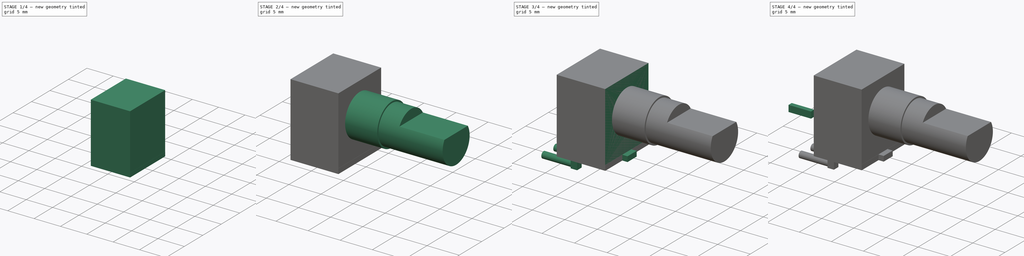
[diagram: build sequence overview — one tinted view per stage of 4, left to right]
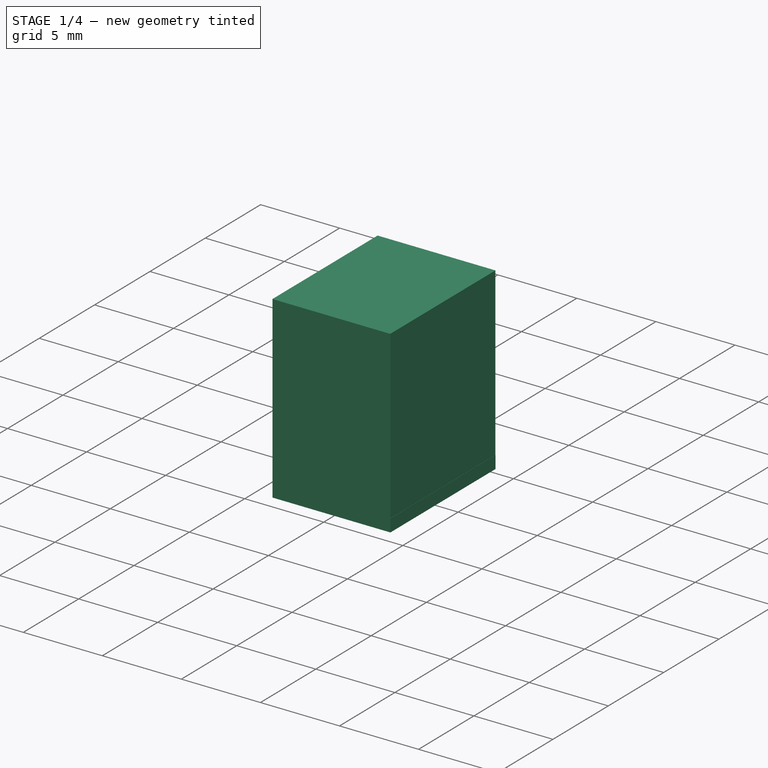
[diagram: stage 1 of 4 — iso view after this stage's code; geometry added in this stage tinted green]
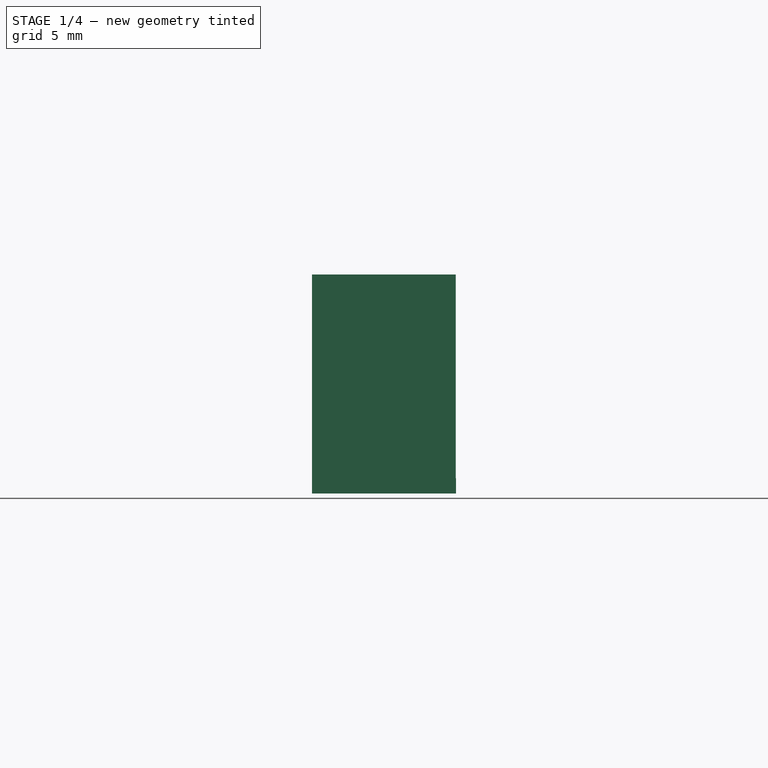
[diagram: stage 1 of 4 — front view after this stage's code; geometry added in this stage tinted green]
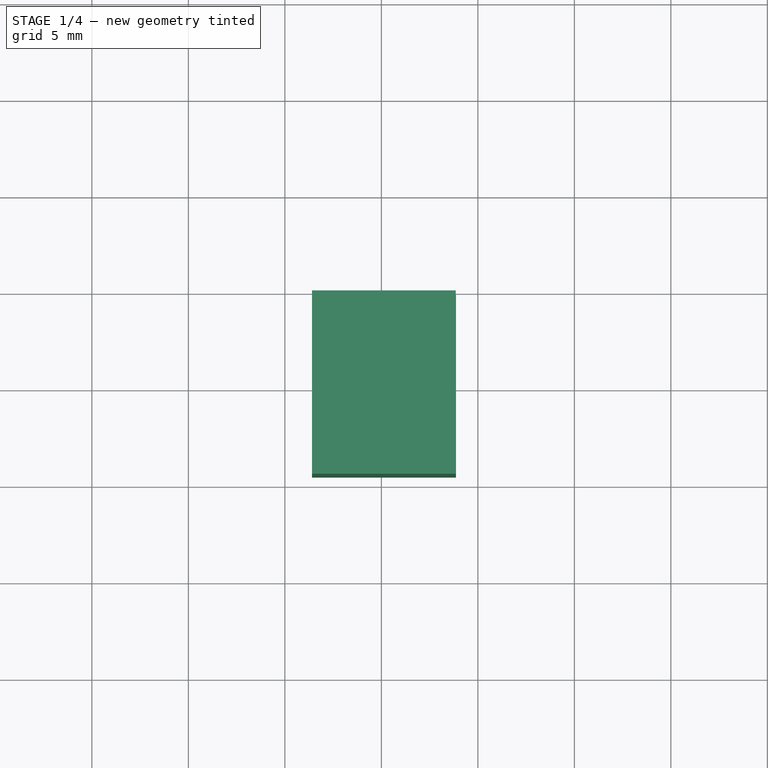
[diagram: stage 1 of 4 — top view after this stage's code; geometry added in this stage tinted green]
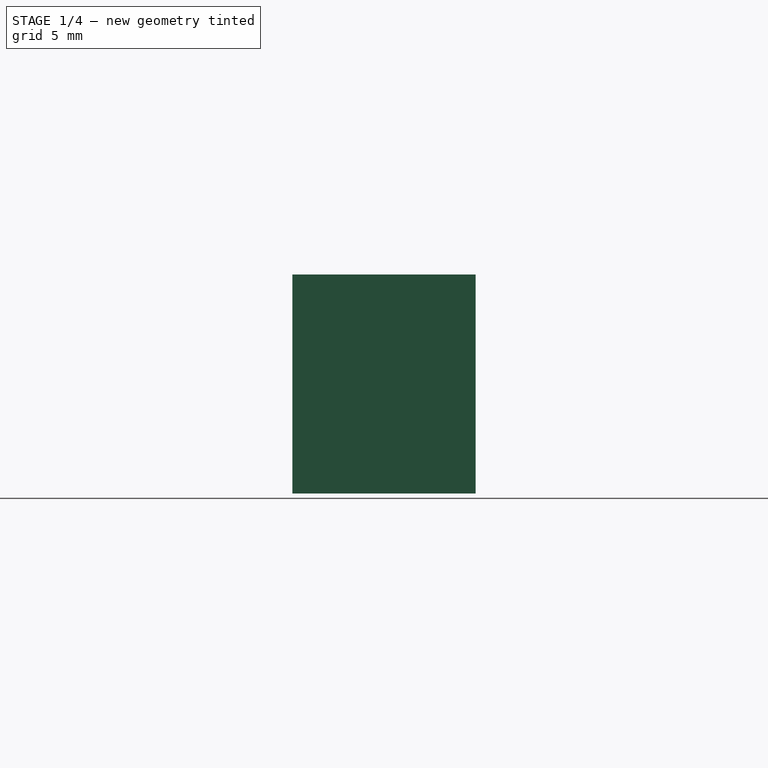
[diagram: stage 1 of 4 — right view after this stage's code; geometry added in this stage tinted green]
FCSTD DOCUMENT  (FreeCAD 0.15R4671 (Git))
Label: P0915N rotary potentiometer
License: All rights reserved
LicenseURL: http://en.wikipedia.org/wiki/All_rights_reserved
objects: Sketcher::SketchObject×9, PartDesign::Pad×8, PartDesign::Pocket×1, Part::MultiFuse×1
note: 28 computed .brp shape members not serialized (recipe doc carries the construction recipe); baked Part::Feature solids carry a one-line shape summary decoded from their .brp

FEATURE [Sketcher::SketchObject] Sketch
  Placement = pos=(0,0,0) rot=(1,0,0;1.5708rad)
  sketch-geometry (4):
    g0: LineSegment StartX=-3.59432 StartY=5.54132 StartZ=0 EndX=3.85568 EndY=5.54132 EndZ=0
    g1: LineSegment StartX=3.85568 StartY=5.54132 StartZ=0 EndX=3.85568 EndY=-5.80868 EndZ=0
    g2: LineSegment StartX=3.85568 StartY=-5.80868 StartZ=0 EndX=-3.59432 EndY=-5.80868 EndZ=0
    g3: LineSegment StartX=-3.59432 StartY=-5.80868 StartZ=0 EndX=-3.59432 EndY=5.54132 EndZ=0
  constraints (10):
    c: Coincident(g0,g1)
    c: Coincident(g1,g2)
    c: Coincident(g2,g3)
    c: Coincident(g3,g0)
    c: Horizontal(g0)
    c: Horizontal(g2)
    c: Vertical(g1)
    c: Vertical(g3)
    c: DistanceX(g0,g0) = 7.45
    c: DistanceY(g2,g0) = 11.35
FEATURE [PartDesign::Pad] Pad
  Length = 9.5
  Length2 = 100
  Placement = pos=(0,0,0) rot=(1,0,0;1.5708rad)
  Sketch = -> Sketch
  Type = 0
FEATURE [Sketcher::SketchObject] Sketch001
  ExternalGeometry = -> [Pad]
  Placement = pos=(3.85568,0,0) rot=(0.707107,0,0.707107;3.14159rad)
  Support = -> Pad [Face2]
  sketch-geometry (4):
    g0: LineSegment StartX=-5.80868 StartY=9.5 StartZ=0 EndX=-5.00868 EndY=9.5 EndZ=0
    g1: LineSegment StartX=-5.00868 StartY=9.5 StartZ=0 EndX=-5.00868 EndY=0 EndZ=0
    g2: LineSegment StartX=-5.00868 StartY=0 StartZ=0 EndX=-5.80868 EndY=0 EndZ=0
    g3: LineSegment StartX=-5.80868 StartY=0 StartZ=0 EndX=-5.80868 EndY=9.5 EndZ=0
  constraints (10):
    c: Coincident(g0,g1)
    c: Coincident(g1,g2)
    c: Coincident(g2,g3)
    c: Coincident(g3,g0)
    c: Horizontal(g0)
    c: Horizontal(g2)
    c: Vertical(g1)
    c: Vertical(g3)
    c: Coincident(g0,g-3)
    c: DistanceX(g0,g0) = -0.8
FEATURE [PartDesign::Pad] Pad001
  Length = 0.01
  Length2 = 100
  Placement = pos=(0,0,0) rot=(1,0,0;1.5708rad)
  Sketch = -> Sketch001
  Type = 0
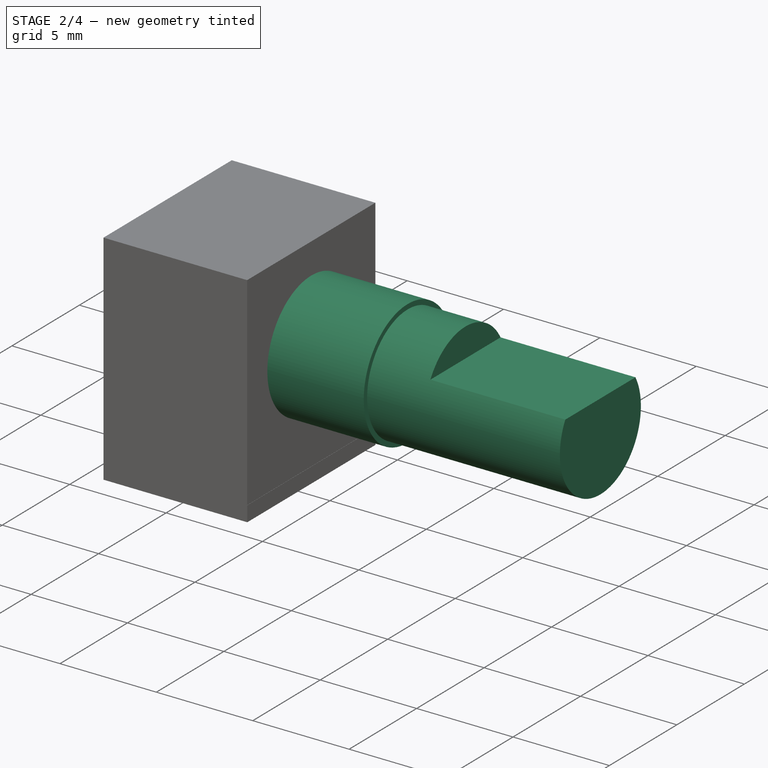
[diagram: stage 2 of 4 — iso view after this stage's code; geometry added in this stage tinted green]
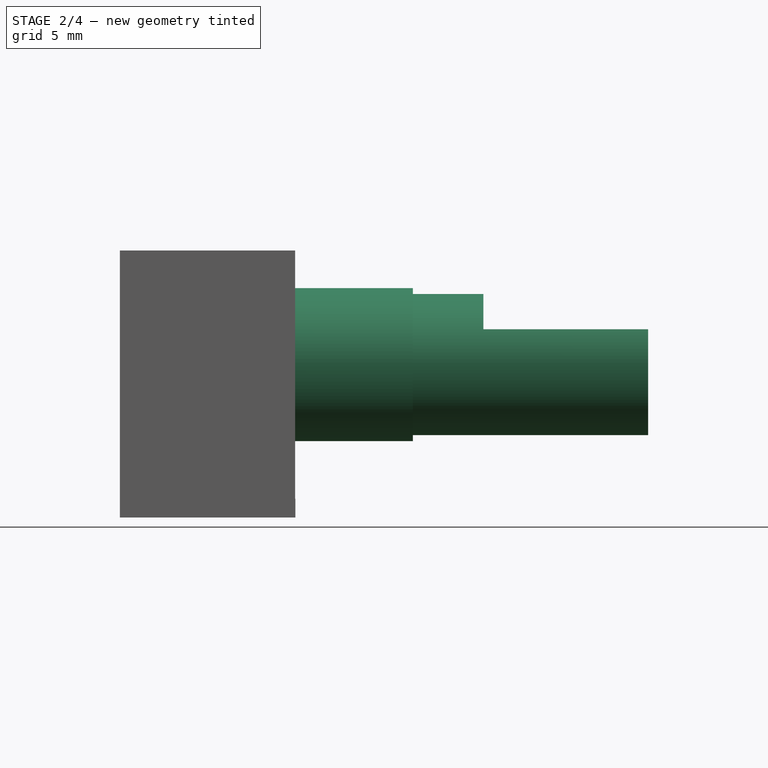
[diagram: stage 2 of 4 — front view after this stage's code; geometry added in this stage tinted green]
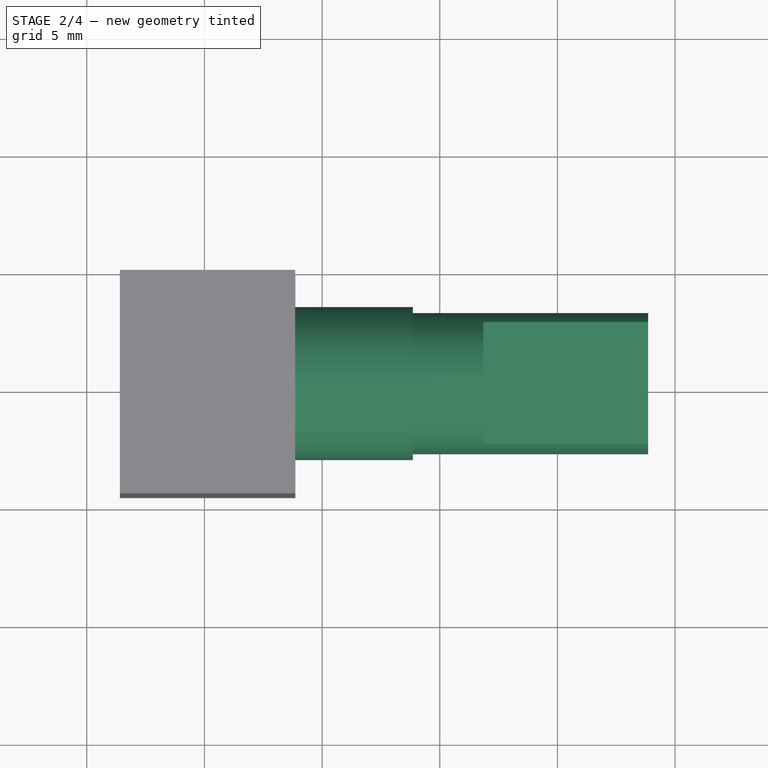
[diagram: stage 2 of 4 — top view after this stage's code; geometry added in this stage tinted green]
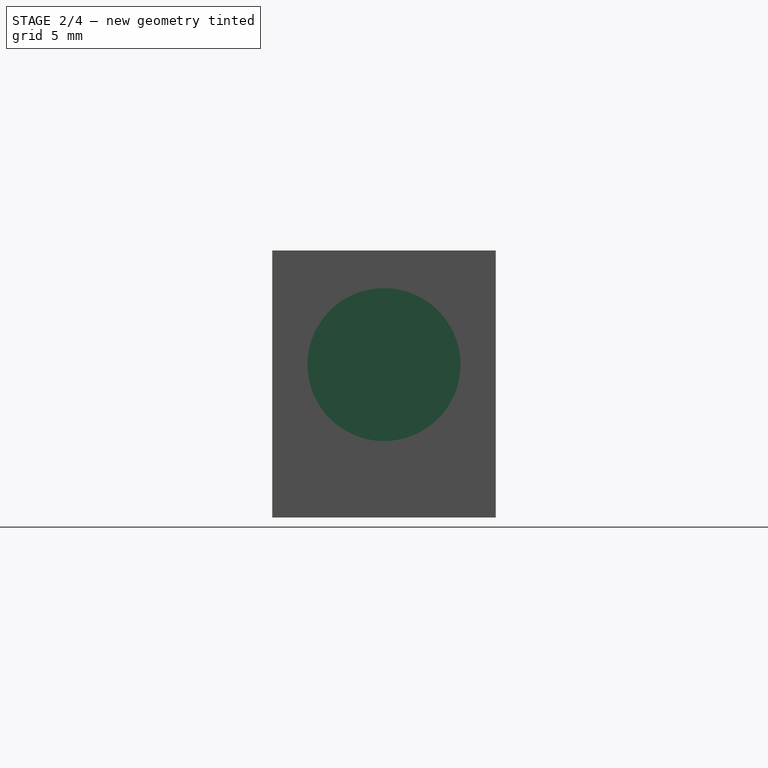
[diagram: stage 2 of 4 — right view after this stage's code; geometry added in this stage tinted green]
FEATURE [Sketcher::SketchObject] Sketch002
  ExternalGeometry = -> [Pad001]
  Placement = pos=(3.85568,0,0) rot=(0.707107,0,0.707107;3.14159rad)
  Support = -> Pad001 [Face3]
  sketch-geometry (3):
    g0: Circle CenterX=0.691315 CenterY=4.75 CenterZ=0 NormalX=0 NormalY=0 NormalZ=1 Radius=3
    g1: LineSegment [constr] StartX=0.691315 StartY=4.75 StartZ=0 EndX=0.691315 EndY=0 EndZ=0
    g2: LineSegment [constr] StartX=0.691315 StartY=4.75 StartZ=0 EndX=0.691315 EndY=9.5 EndZ=0
  constraints (9):
    c: Radius(g0) = 3
    c: DistanceX(g0,g-4) = 4.85
    c: Coincident(g1,g0)
    c: PointOnObject(g1,g-5)
    c: Vertical(g1)
    c: Coincident(g2,g0)
    c: PointOnObject(g2,g-3)
    c: Vertical(g2)
    c: Equal(g2,g1)
FEATURE [PartDesign::Pad] Pad002
  Length = 15
  Length2 = 100
  Placement = pos=(0,0,0) rot=(1,0,0;1.5708rad)
  Sketch = -> Sketch002
  Type = 0
FEATURE [Sketcher::SketchObject] Sketch003
  ExternalGeometry = -> [Pad002]
  Placement = pos=(18.8557,0,0) rot=(0.707107,0,0.707107;3.14159rad)
  Support = -> Pad002 [Face13]
  sketch-geometry (5):
    g0: LineSegment [constr] StartX=-2.30868 StartY=9.5 StartZ=0 EndX=-2.30868 EndY=0 EndZ=0
    g1: LineSegment StartX=2.19132 StartY=9.5 StartZ=0 EndX=5.54132 EndY=9.5 EndZ=0
    g2: LineSegment StartX=5.54132 StartY=9.5 StartZ=0 EndX=5.54132 EndY=0 EndZ=0
    g3: LineSegment StartX=5.54132 StartY=0 StartZ=0 EndX=2.19132 EndY=0 EndZ=0
    g4: LineSegment StartX=2.19132 StartY=0 StartZ=0 EndX=2.19132 EndY=9.5 EndZ=0
  constraints (16):
    c: PointOnObject(g0,g-4)
    c: Vertical(g0)
    c: Tangent(g0,g-3)
    c: Coincident(g1,g2)
    c: Coincident(g2,g3)
    c: Coincident(g3,g4)
    c: Coincident(g4,g1)
    c: Horizontal(g1)
    c: Horizontal(g3)
    c: Vertical(g2)
    c: Vertical(g4)
    c: PointOnObject(g1,g-4)
    c: PointOnObject(g2,g-5)
    c: DistanceX(g0,g1) = 4.5
    c: Coincident(g1,g-4)
    c: PointOnObject(g0,g-5)
FEATURE [PartDesign::Pocket] Pocket
  Length = 7
  Placement = pos=(0,0,0) rot=(1,0,0;1.5708rad)
  Sketch = -> Sketch003
  Type = 0
FEATURE [Sketcher::SketchObject] Sketch004
  ExternalGeometry = -> [Pocket]
  Placement = pos=(3.85568,0,0) rot=(0.707107,0,0.707107;3.14159rad)
  Support = -> Pocket [Face3]
  sketch-geometry (3):
    g0: Circle CenterX=0.691315 CenterY=4.75 CenterZ=0 NormalX=0 NormalY=0 NormalZ=1 Radius=3.25
    g1: LineSegment [constr] StartX=0.691315 StartY=9.5 StartZ=0 EndX=0.691315 EndY=4.75 EndZ=0
    g2: LineSegment [constr] StartX=0.691315 StartY=4.75 StartZ=0 EndX=0.691315 EndY=0 EndZ=0
  constraints (9):
    c: DistanceX(g0,g-5) = 4.85
    c: Radius(g0) = 3.25
    c: PointOnObject(g1,g-3)
    c: Coincident(g1,g0)
    c: Vertical(g1)
    c: Coincident(g2,g0)
    c: PointOnObject(g2,g-4)
    c: Vertical(g2)
    c: Equal(g2,g1)
FEATURE [PartDesign::Pad] Pad003
  Length = 5
  Length2 = 100
  Placement = pos=(0,0,0) rot=(1,0,0;1.5708rad)
  Sketch = -> Sketch004
  Type = 0
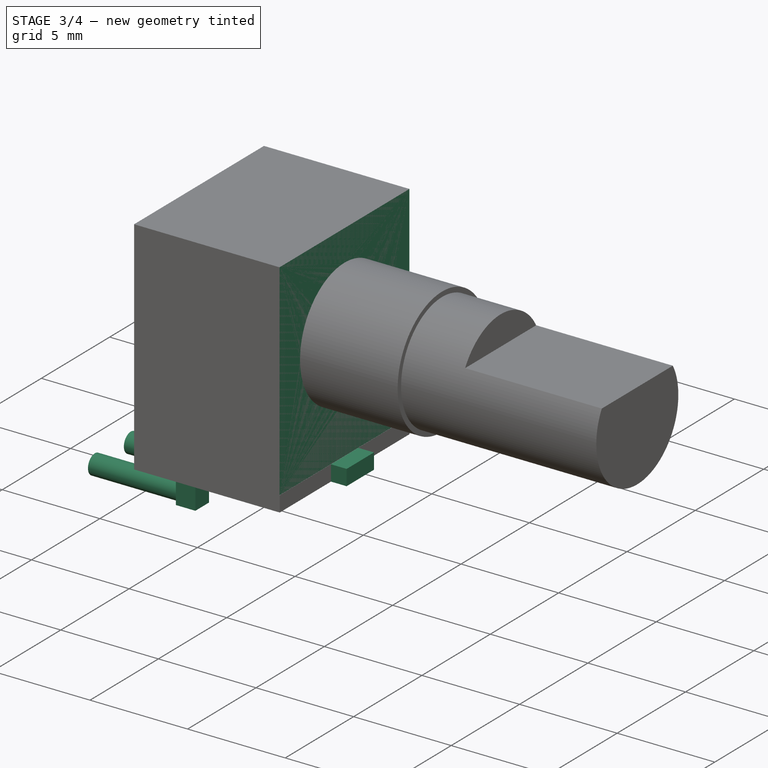
[diagram: stage 3 of 4 — iso view after this stage's code; geometry added in this stage tinted green]
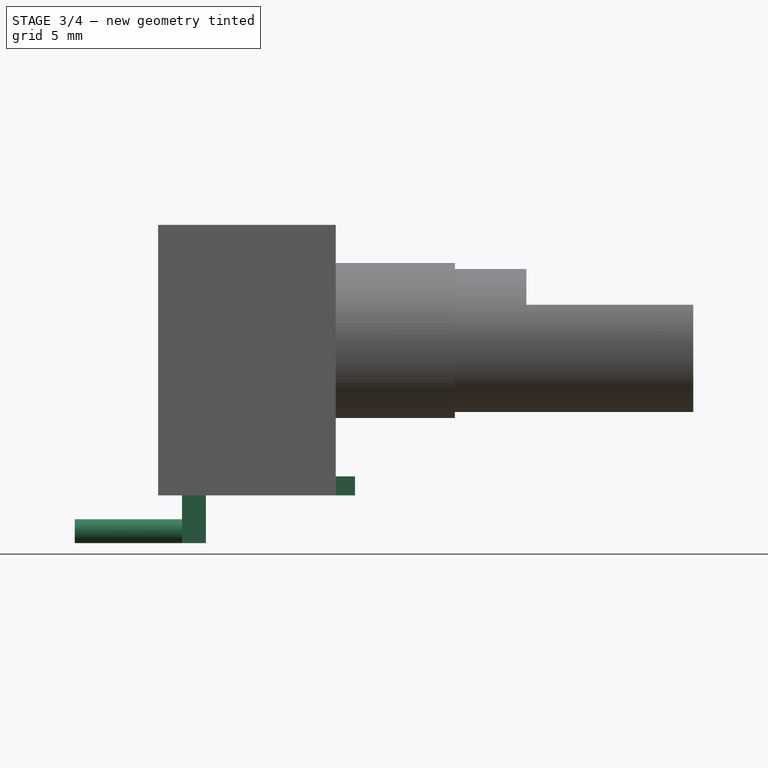
[diagram: stage 3 of 4 — front view after this stage's code; geometry added in this stage tinted green]
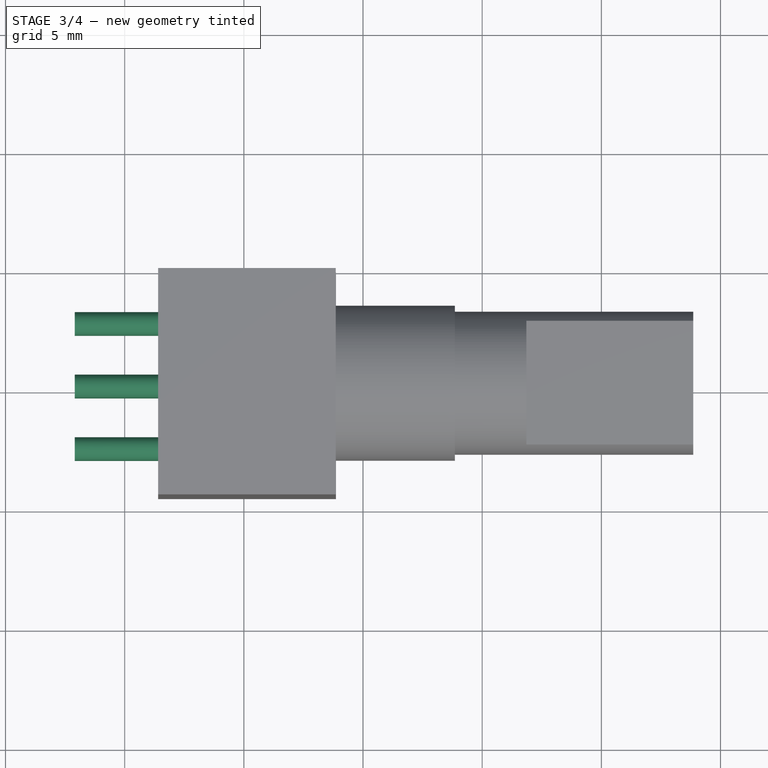
[diagram: stage 3 of 4 — top view after this stage's code; geometry added in this stage tinted green]
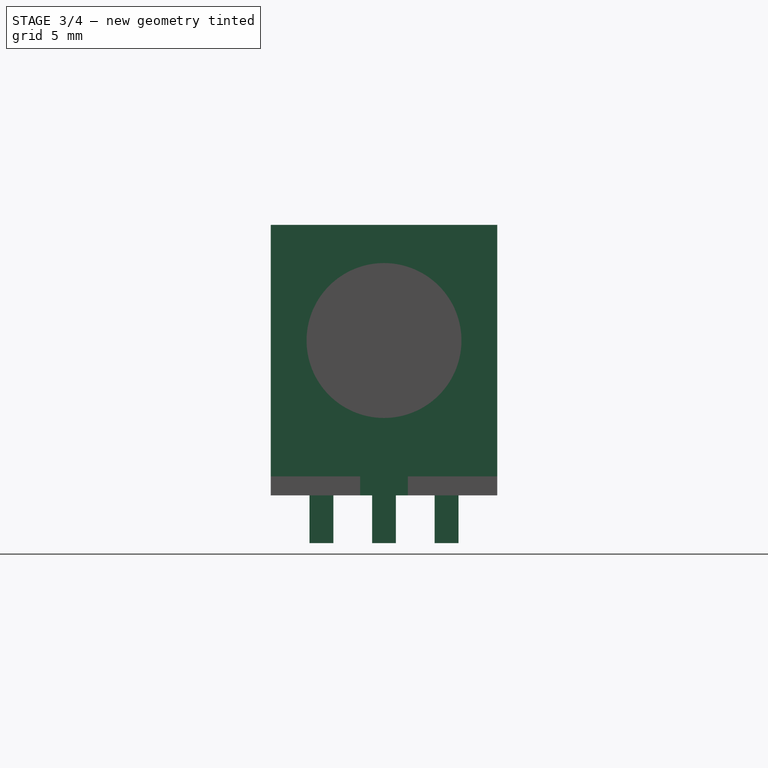
[diagram: stage 3 of 4 — right view after this stage's code; geometry added in this stage tinted green]
FEATURE [Sketcher::SketchObject] Sketch005
  ExternalGeometry = -> [Pad001]
  Placement = pos=(3.86568,0,0) rot=(0.707107,0,0.707107;3.14159rad)
  Support = -> Pad001 [Face11]
  sketch-geometry (5):
    g0: LineSegment StartX=-5.80868 StartY=5.75 StartZ=0 EndX=-5.00868 EndY=5.75 EndZ=0
    g1: LineSegment StartX=-5.00868 StartY=5.75 StartZ=0 EndX=-5.00868 EndY=3.75 EndZ=0
    g2: LineSegment StartX=-5.00868 StartY=3.75 StartZ=0 EndX=-5.80868 EndY=3.75 EndZ=0
    g3: LineSegment StartX=-5.80868 StartY=3.75 StartZ=0 EndX=-5.80868 EndY=5.75 EndZ=0
    g4: LineSegment [constr] StartX=-5.80868 StartY=4.75 StartZ=0 EndX=-5.00868 EndY=4.75 EndZ=0
  constraints (16):
    c: Coincident(g0,g1)
    c: Coincident(g1,g2)
    c: Coincident(g2,g3)
    c: Coincident(g3,g0)
    c: Horizontal(g0)
    c: Horizontal(g2)
    c: Vertical(g1)
    c: Vertical(g3)
    c: PointOnObject(g0,g-3)
    c: PointOnObject(g1,g-4)
    c: DistanceY(g0,g2) = -2
    c: PointOnObject(g4,g-3)
    c: PointOnObject(g4,g-4)
    c: Horizontal(g4)
    c: Symmetric(g-6,g-5,g4)
    c: Symmetric(g0,g2,g4)
FEATURE [PartDesign::Pad] Pad004
  Length = 0.8
  Length2 = 100
  Placement = pos=(0,0,0) rot=(1,0,0;1.5708rad)
  Sketch = -> Sketch005
  Type = 0
FEATURE [Sketcher::SketchObject] Sketch007
  ExternalGeometry = -> [Pad003]
  Placement = pos=(0,0,-5.80868) rot=(1,0,0;3.14159rad)
  Support = -> Pad003 [Face6]
  sketch-geometry (16):
    g0: LineSegment StartX=-2.59432 StartY=7.875 StartZ=0 EndX=-1.59432 EndY=7.875 EndZ=0
    g1: LineSegment StartX=-1.59432 StartY=7.875 StartZ=0 EndX=-1.59432 EndY=6.875 EndZ=0
    g2: LineSegment StartX=-1.59432 StartY=6.875 StartZ=0 EndX=-2.59432 EndY=6.875 EndZ=0
    g3: LineSegment StartX=-2.59432 StartY=6.875 StartZ=0 EndX=-2.59432 EndY=7.875 EndZ=0
    g4: LineSegment StartX=-2.59432 StartY=5.25 StartZ=0 EndX=-1.59432 EndY=5.25 EndZ=0
    g5: LineSegment StartX=-1.59432 StartY=5.25 StartZ=0 EndX=-1.59432 EndY=4.25 EndZ=0
    g6: LineSegment StartX=-1.59432 StartY=4.25 StartZ=0 EndX=-2.59432 EndY=4.25 EndZ=0
    g7: LineSegment StartX=-2.59432 StartY=4.25 StartZ=0 EndX=-2.59432 EndY=5.25 EndZ=0
    g8: LineSegment StartX=-2.59432 StartY=2.625 StartZ=0 EndX=-1.59432 EndY=2.625 EndZ=0
    g9: LineSegment StartX=-1.59432 StartY=2.625 StartZ=0 EndX=-1.59432 EndY=1.625 EndZ=0
    g10: LineSegment StartX=-1.59432 StartY=1.625 StartZ=0 EndX=-2.59432 EndY=1.625 EndZ=0
    g11: LineSegment StartX=-2.59432 StartY=1.625 StartZ=0 EndX=-2.59432 EndY=2.625 EndZ=0
    g12: LineSegment [constr] StartX=-2.59432 StartY=5.25 StartZ=0 EndX=-2.59432 EndY=6.875 EndZ=0
    g13: LineSegment [constr] StartX=-2.59432 StartY=4.25 StartZ=0 EndX=-2.59432 EndY=2.625 EndZ=0
    g14: LineSegment [constr] StartX=-2.59432 StartY=7.875 StartZ=0 EndX=-2.59432 EndY=9.5 EndZ=0
    g15: LineSegment [constr] StartX=-2.59432 StartY=1.625 StartZ=0 EndX=-2.59432 EndY=0 EndZ=0
  constraints (46):
    c: Coincident(g0,g1)
    c: Coincident(g1,g2)
    c: Coincident(g2,g3)
    c: Coincident(g3,g0)
    c: Horizontal(g0)
    c: Horizontal(g2)
    c: Vertical(g1)
    c: Vertical(g3)
    c: Coincident(g4,g5)
    c: Coincident(g5,g6)
    c: Coincident(g6,g7)
    c: Coincident(g7,g4)
    c: Horizontal(g4)
    c: Horizontal(g6)
    c: Vertical(g5)
    c: Vertical(g7)
    c: Coincident(g8,g9)
    c: Coincident(g9,g10)
    c: Coincident(g10,g11)
    c: Coincident(g11,g8)
    c: Horizontal(g8)
    c: Horizontal(g10)
    c: Vertical(g9)
    c: Vertical(g11)
    c: Coincident(g12,g4)
    c: Coincident(g12,g2)
    c: Vertical(g12)
    c: Coincident(g13,g6)
    c: Coincident(g13,g8)
    c: Vertical(g13)
    c: Coincident(g14,g0)
    c: PointOnObject(g14,g-3)
    c: Vertical(g14)
    c: Coincident(g15,g10)
    c: PointOnObject(g15,g-4)
    c: Vertical(g15)
    c: Equal(g14,g12)
    c: Equal(g12,g13)
    c: Equal(g13,g15)
    c: Equal(g3,g7)
    c: Equal(g7,g11)
    c: Equal(g0,g4)
    c: Equal(g4,g8)
    c: DistanceX(g0,g0) = 1
    c: DistanceY(g0,g1) = -1
    c: DistanceX(g0,g-3) = -1
FEATURE [PartDesign::Pad] Pad006
  Length = 2
  Length2 = 100
  Placement = pos=(0,0,0) rot=(1,0,0;1.5708rad)
  Sketch = -> Sketch007
  Type = 0
FEATURE [Sketcher::SketchObject] Sketch008
  ExternalGeometry = -> [Pad006]
  Placement = pos=(-2.59432,0,0) rot=(0.707107,0,-0.707107;3.14159rad)
  Support = -> Pad006 [Face16]
  sketch-geometry (5):
    g0: Circle CenterX=7.30868 CenterY=4.75 CenterZ=0 NormalX=0 NormalY=0 NormalZ=1 Radius=0.5
    g1: Circle CenterX=7.30868 CenterY=7.375 CenterZ=0 NormalX=0 NormalY=0 NormalZ=1 Radius=0.5
    g2: LineSegment [constr] StartX=7.30868 StartY=7.375 StartZ=0 EndX=7.30868 EndY=4.75 EndZ=0
    g3: Circle CenterX=7.30868 CenterY=2.125 CenterZ=0 NormalX=0 NormalY=0 NormalZ=1 Radius=0.5
    g4: LineSegment [constr] StartX=7.30868 StartY=4.75 StartZ=0 EndX=7.30868 EndY=2.125 EndZ=0
  constraints (13):
    c: Radius(g0) = 0.5
    c: DistanceX(g0,g-5) = 0.5
    c: DistanceY(g0,g-5) = 0.5
    c: Equal(g0,g1)
    c: Coincident(g2,g1)
    c: Coincident(g2,g0)
    c: Vertical(g2)
    c: Coincident(g4,g0)
    c: Coincident(g4,g3)
    c: Vertical(g4)
    c: Equal(g3,g0)
    c: Equal(g4,g2)
    c: DistanceY(g3,g-11) = 0.5
FEATURE [PartDesign::Pad] Pad007
  Length = 4.5
  Length2 = 100
  Placement = pos=(0,0,0) rot=(1,0,0;1.5708rad)
  Sketch = -> Sketch008
  Type = 0
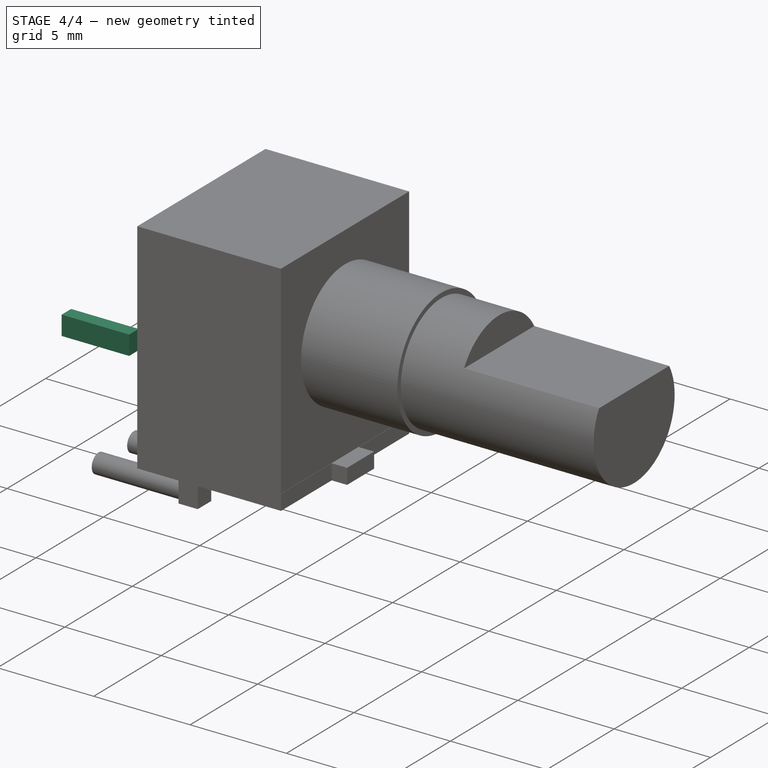
[diagram: stage 4 of 4 — iso view after this stage's code; geometry added in this stage tinted green]
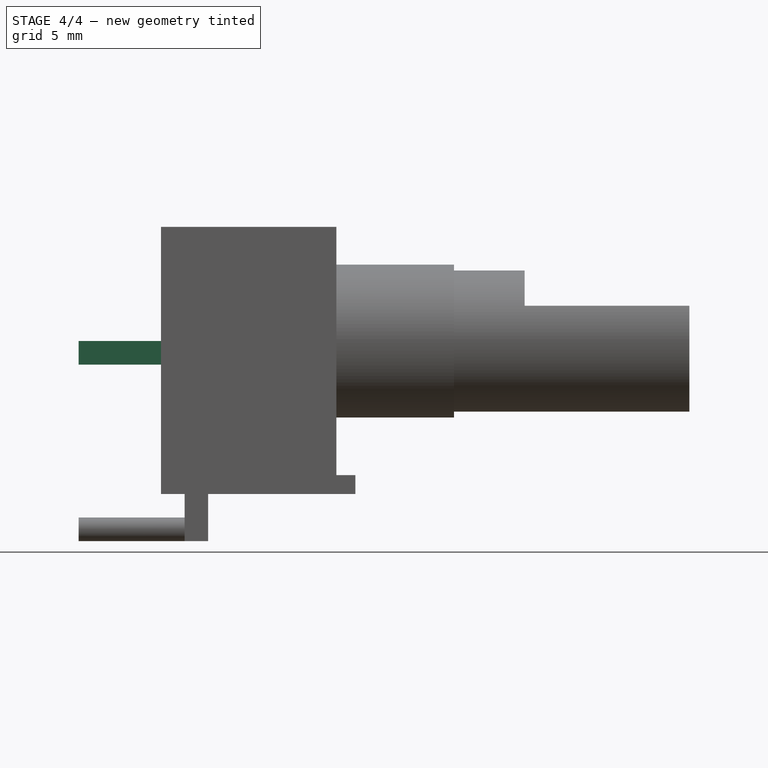
[diagram: stage 4 of 4 — front view after this stage's code; geometry added in this stage tinted green]
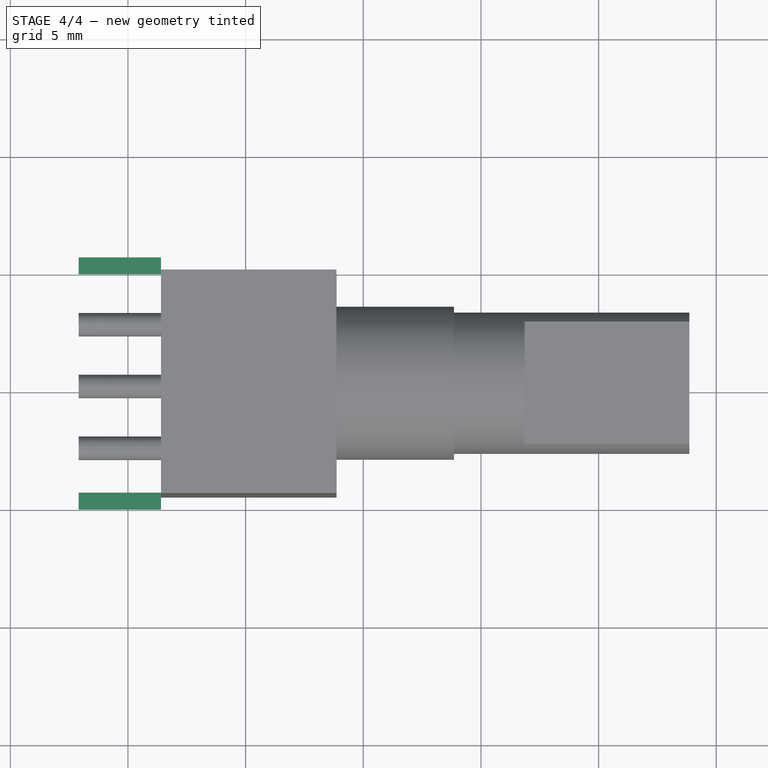
[diagram: stage 4 of 4 — top view after this stage's code; geometry added in this stage tinted green]
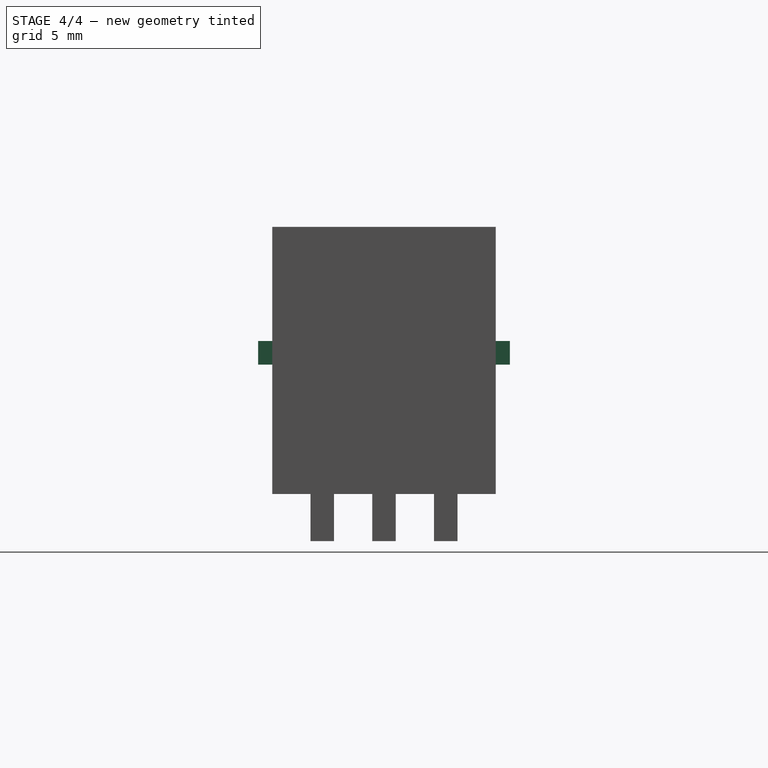
[diagram: stage 4 of 4 — right view after this stage's code; geometry added in this stage tinted green]
FEATURE [Sketcher::SketchObject] Sketch006
  ExternalGeometry = -> [Pad004]
  Placement = pos=(-3.59432,0,0) rot=(0.707107,0,-0.707107;3.14159rad)
  Support = -> Pad004 [Face2]
  sketch-geometry (9):
    g0: LineSegment StartX=-0.691315 StartY=10.1 StartZ=0 EndX=0.308685 EndY=10.1 EndZ=0
    g1: LineSegment StartX=0.308685 StartY=10.1 StartZ=0 EndX=0.308685 EndY=9.4 EndZ=0
    g2: LineSegment StartX=0.308685 StartY=9.4 StartZ=0 EndX=-0.691315 EndY=9.4 EndZ=0
    g3: LineSegment StartX=-0.691315 StartY=9.4 StartZ=0 EndX=-0.691315 EndY=10.1 EndZ=0
    g4: LineSegment StartX=-0.691315 StartY=0.1 StartZ=0 EndX=0.308685 EndY=0.1 EndZ=0
    g5: LineSegment StartX=0.308685 StartY=0.1 StartZ=0 EndX=0.308685 EndY=-0.6 EndZ=0
    g6: LineSegment StartX=0.308685 StartY=-0.6 StartZ=0 EndX=-0.691315 EndY=-0.6 EndZ=0
    g7: LineSegment StartX=-0.691315 StartY=-0.6 StartZ=0 EndX=-0.691315 EndY=0.1 EndZ=0
    g8: LineSegment [constr] StartX=-0.191315 StartY=9.4 StartZ=0 EndX=-0.191315 EndY=0.1 EndZ=0
  constraints (27):
    c: Coincident(g0,g1)
    c: Coincident(g1,g2)
    c: Coincident(g2,g3)
    c: Coincident(g3,g0)
    c: Horizontal(g0)
    c: Horizontal(g2)
    c: Vertical(g1)
    c: Vertical(g3)
    c: Coincident(g4,g5)
    c: Coincident(g5,g6)
    c: Coincident(g6,g7)
    c: Coincident(g7,g4)
    c: Horizontal(g6)
    c: Vertical(g5)
    c: Vertical(g7)
    c: PointOnObject(g8,g2)
    c: PointOnObject(g8,g4)
    c: Symmetric(g1,g2,g8)
    c: DistanceX(g8,g-3) = 6
    c: Symmetric(g4,g4,g8)
    c: DistanceY(g0,g6) = -10.7
    c: DistanceY(g1,g-3) = 0.1
    c: Equal(g1,g5)
    c: Equal(g0,g6)
    c: DistanceX(g0,g0) = 1
    c: Equal(g7,g3)
    c: DistanceY(g4,g-3) = -0.1
FEATURE [PartDesign::Pad] Pad005
  Length = 3.5
  Length2 = 100
  Placement = pos=(0,0,0) rot=(1,0,0;1.5708rad)
  Sketch = -> Sketch006
  Type = 0
FEATURE [Part::MultiFuse] Fusion
  Shapes = -> [Pad007,Pad005]
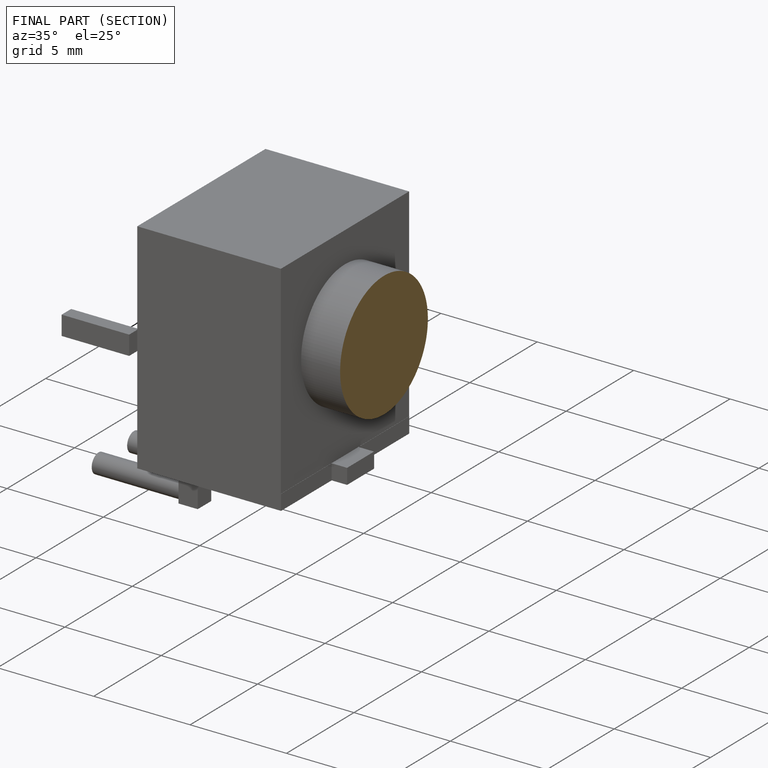
[diagram: finished part — half-section view (interior)]
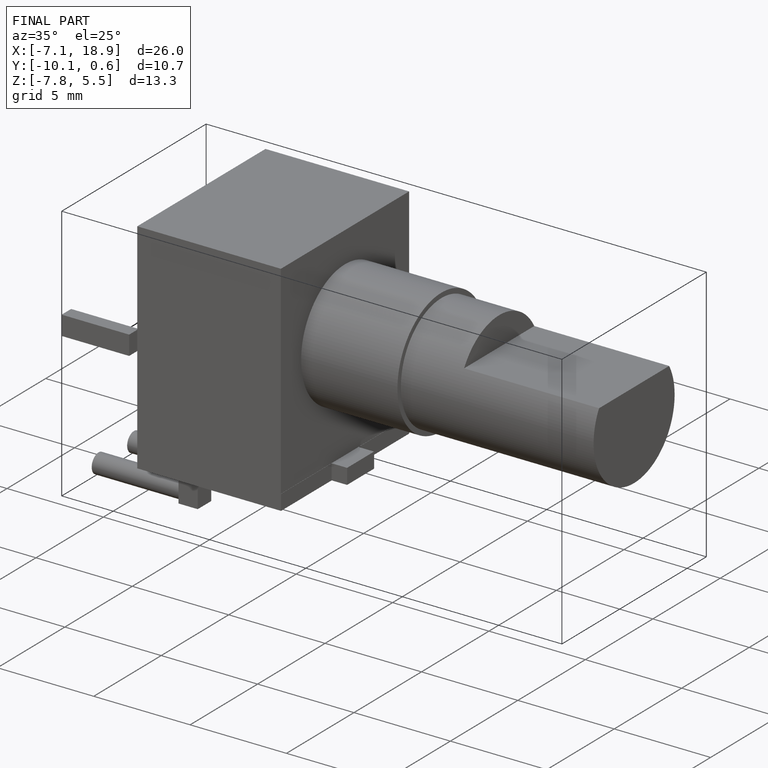
[diagram: finished part — iso view with bounding-box wireframe]
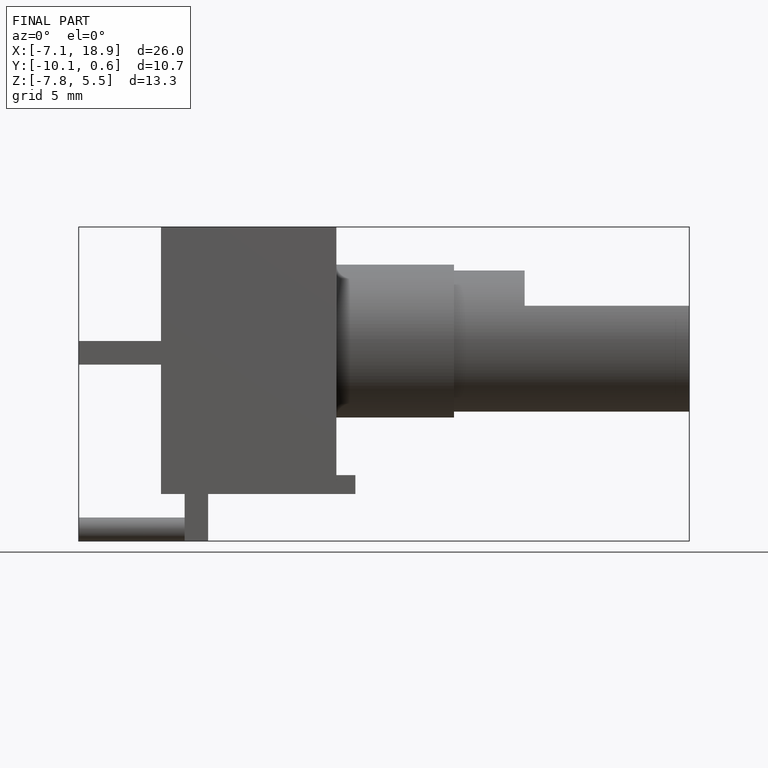
[diagram: finished part — front view with bounding-box wireframe]
